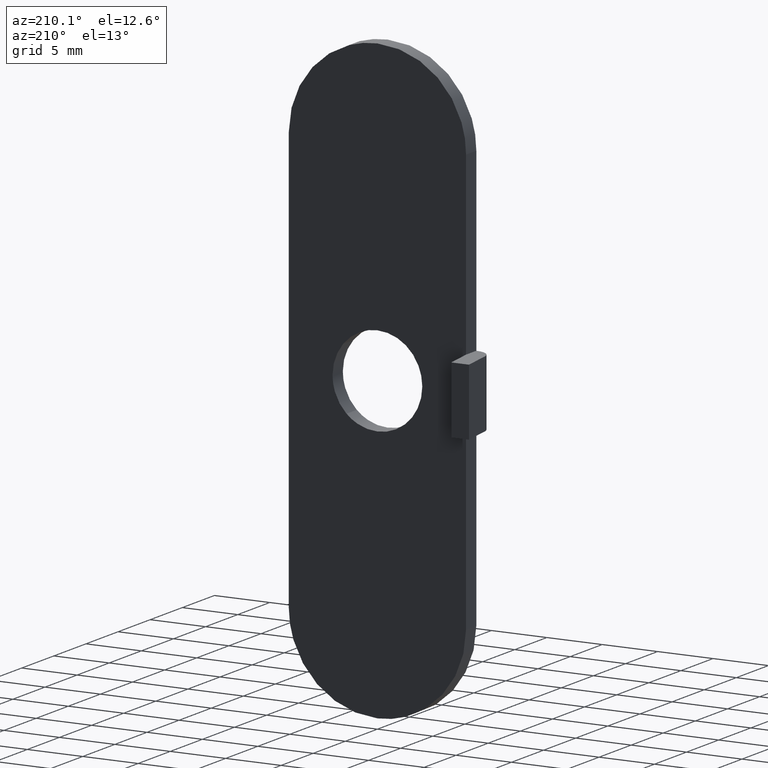
[diagram: clean part render]
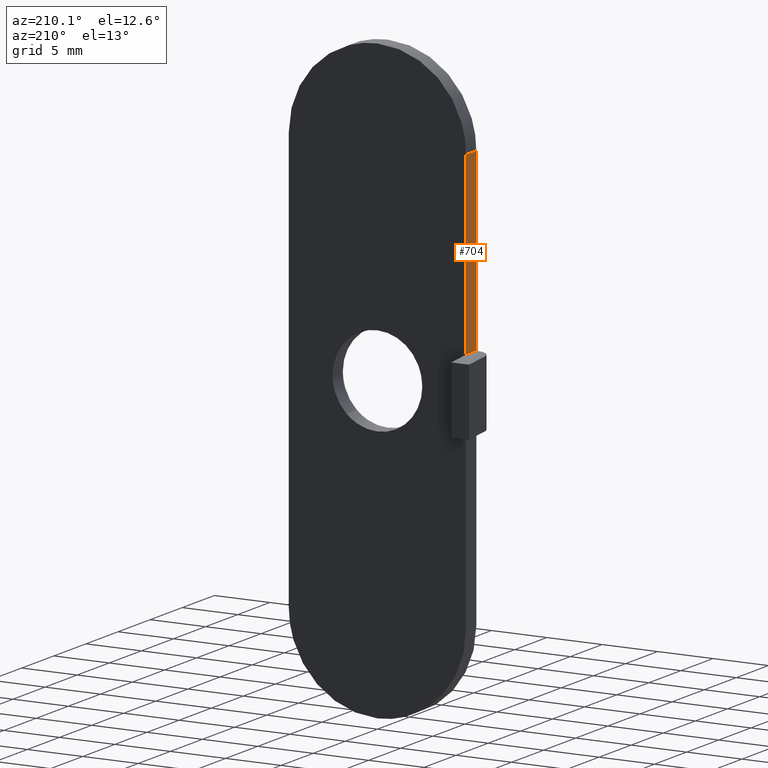
[diagram: same view with one face highlighted and labeled with its STEP entity id]
A machine part, auxiliary view. The second image highlights one B-rep face of the part: STEP entity #704.
In plain terms, the highlighted face is a freeform B-spline surface patch.
Its self-contained STEP definition (entity closure, byte-faithful):
#275=CARTESIAN_POINT('',(-8.0,-1.600004125000085,3.0));
#276=VERTEX_POINT('',#275);
#289=CARTESIAN_POINT('',(-8.0,0.000026249934202,3.0));
#290=VERTEX_POINT('',#289);
#291=CARTESIAN_POINT('',(-8.0,0.000026249934202,3.0));
#292=CARTESIAN_POINT('',(-8.0,-1.600004125000085,3.0));
#293=QUASI_UNIFORM_CURVE('',1,(#291,#292),.UNSPECIFIED.,.F.,.U.);
#294=EDGE_CURVE('',#290,#276,#293,.T.);
#469=CARTESIAN_POINT('',(-8.0,-1.599990999999965,19.0));
#470=VERTEX_POINT('',#469);
#489=CARTESIAN_POINT('',(-8.0,-1.600004125000085,3.0));
#490=CARTESIAN_POINT('',(-8.0,-1.599990999999965,19.0));
#491=QUASI_UNIFORM_CURVE('',1,(#489,#490),.UNSPECIFIED.,.F.,.U.);
#492=EDGE_CURVE('',#276,#470,#491,.T.);
#605=CARTESIAN_POINT('',(-8.0,0.0,19.0));
#606=VERTEX_POINT('',#605);
#607=CARTESIAN_POINT('',(-8.0,0.000026249934202,3.0));
#608=CARTESIAN_POINT('',(-8.0,0.0,19.0));
#609=QUASI_UNIFORM_CURVE('',1,(#607,#608),.UNSPECIFIED.,.F.,.U.);
#610=EDGE_CURVE('',#290,#606,#609,.T.);
#685=CARTESIAN_POINT('',(-8.0,0.0,19.0));
#686=CARTESIAN_POINT('',(-8.0,-1.599990999999965,19.0));
#687=QUASI_UNIFORM_CURVE('',1,(#685,#686),.UNSPECIFIED.,.F.,.U.);
#688=EDGE_CURVE('',#606,#470,#687,.T.);
#693=CARTESIAN_POINT('',(-8.0,-1.679925594067063,19.799199968988901));
#694=CARTESIAN_POINT('',(-8.0,-1.679925594067063,2.200799601857663));
#695=CARTESIAN_POINT('',(-8.0,0.079947804833497,19.799199968988901));
#696=CARTESIAN_POINT('',(-8.0,0.079947804833497,2.200799601857663));
#697=B_SPLINE_SURFACE_WITH_KNOTS('',1,1,((#693,#695),(#694,#696)),.UNSPECIFIED.,.F.,.F.,.U.,(2,2),(2,2),(0.0,17.598400367131230),(0.041708358416706,0.958291686286777),.UNSPECIFIED.);
#698=ORIENTED_EDGE('',*,*,#610,.F.);
#699=ORIENTED_EDGE('',*,*,#294,.T.);
#700=ORIENTED_EDGE('',*,*,#492,.T.);
#701=ORIENTED_EDGE('',*,*,#688,.F.);
#702=EDGE_LOOP('',(#698,#699,#700,#701));
#703=FACE_OUTER_BOUND('',#702,.T.);
#704=ADVANCED_FACE('',(#703),#697,.F.);